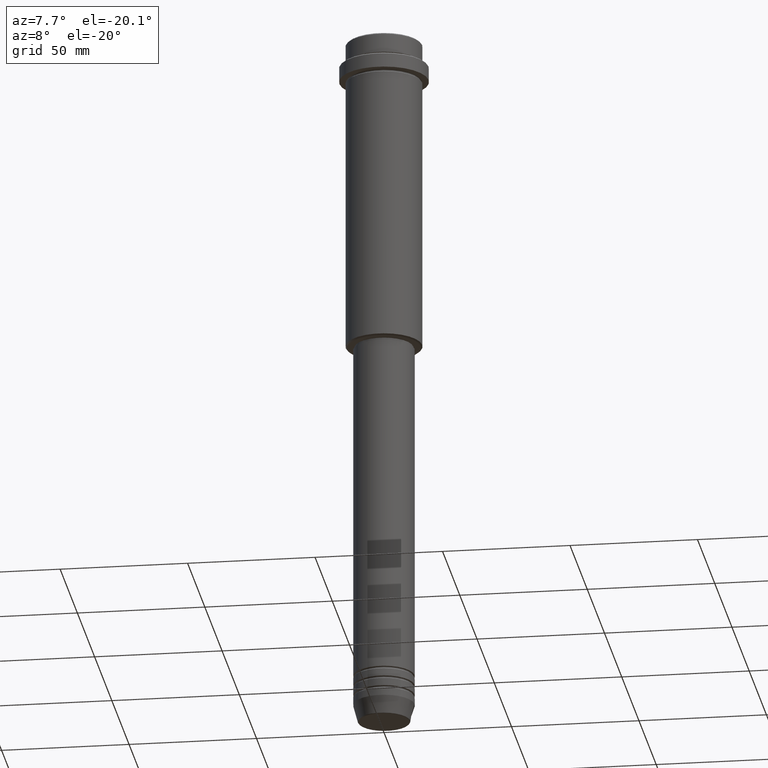
[diagram: clean part render]
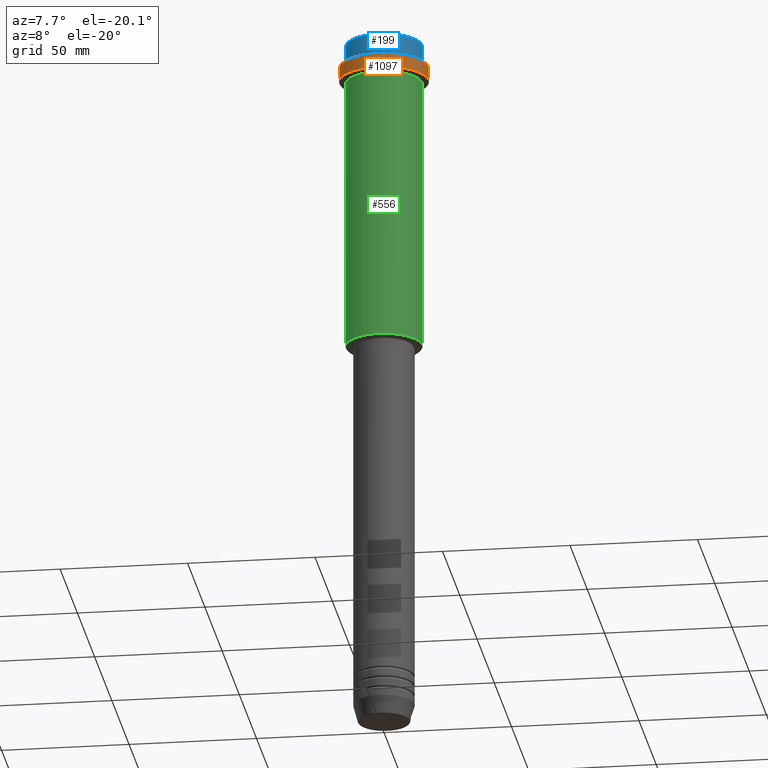
[diagram: same view with three faces highlighted in distinct colors, each labeled with its STEP entity id]
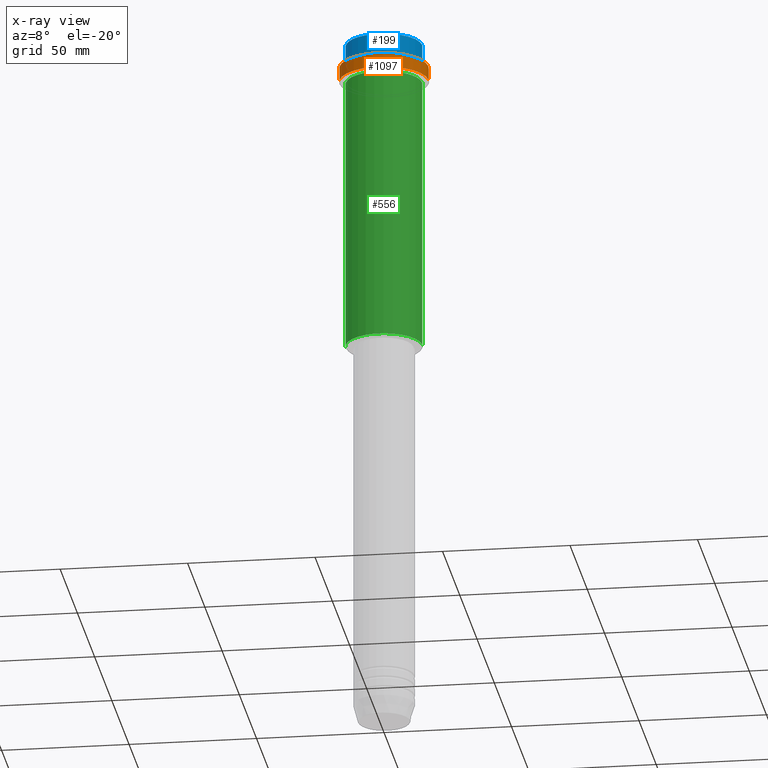
[diagram: x-ray of the same camera — body ghosted, the three highlighted faces saturated]
A machine part, auxiliary view with three faces highlighted in distinct colors.
The next image is the same camera in x-ray (body ghosted, the three faces saturated) — at least one of them is partly hidden behind the body in this view.
Their STEP definitions:

[orange] entity #1097 — the highlighted cylindrical surface (partial cylindrical patch) has radius 17.5 mm, axis along (-0, -0, 1).
#37 = CIRCLE ( 'NONE', #676, 17.50000000000000000 ) ;
#59 = VERTEX_POINT ( 'NONE', #1369 ) ;
#96 = CARTESIAN_POINT ( 'NONE',  ( 17.50000000000000000, 0.000000000000000000, 0.000000000000000000 ) ) ;
#176 = ORIENTED_EDGE ( 'NONE', *, *, #775, .F. ) ;
#210 = EDGE_LOOP ( 'NONE', ( #176, #545, #1207, #1152 ) ) ;
#211 = EDGE_CURVE ( 'NONE', #575, #59, #1217, .T. ) ;
#331 = VECTOR ( 'NONE', #1387, 1000.000000000000000 ) ;
#421 = DIRECTION ( 'NONE',  ( 1.000000000000000000, 0.000000000000000000, 0.000000000000000000 ) ) ;
#530 = DIRECTION ( 'NONE',  ( -0.000000000000000000, -0.000000000000000000, 1.000000000000000000 ) ) ;
#545 = ORIENTED_EDGE ( 'NONE', *, *, #211, .T. ) ;
#557 = CARTESIAN_POINT ( 'NONE',  ( -17.50000000000000000, 2.143131898507868248E-15, -9.499999999999971578 ) ) ;
#575 = VERTEX_POINT ( 'NONE', #1023 ) ;
#578 = DIRECTION ( 'NONE',  ( 1.000000000000000000, 0.000000000000000000, 0.000000000000000000 ) ) ;
#579 = DIRECTION ( 'NONE',  ( 1.000000000000000000, 0.000000000000000000, 0.000000000000000000 ) ) ;
#583 = VECTOR ( 'NONE', #530, 1000.000000000000000 ) ;
#676 = AXIS2_PLACEMENT_3D ( 'NONE', #1215, #1413, #421 ) ;
#684 = FACE_OUTER_BOUND ( 'NONE', #210, .T. ) ;
#735 = CARTESIAN_POINT ( 'NONE',  ( -17.50000000000000000, 2.143131898507868248E-15, 0.000000000000000000 ) ) ;
#745 = EDGE_CURVE ( 'NONE', #59, #1212, #1057, .T. ) ;
#767 = DIRECTION ( 'NONE',  ( -0.000000000000000000, -0.000000000000000000, 1.000000000000000000 ) ) ;
#775 = EDGE_CURVE ( 'NONE', #575, #1029, #1286, .T. ) ;
#801 = AXIS2_PLACEMENT_3D ( 'NONE', #1053, #767, #579 ) ;
#814 = CARTESIAN_POINT ( 'NONE',  ( 0.000000000000000000, 0.000000000000000000, 0.000000000000000000 ) ) ;
#1023 = CARTESIAN_POINT ( 'NONE',  ( -17.50000000000000000, 2.143131898507868248E-15, -15.00000000000000000 ) ) ;
#1029 = VERTEX_POINT ( 'NONE', #557 ) ;
#1041 = EDGE_CURVE ( 'NONE', #1212, #1029, #37, .T. ) ;
#1053 = CARTESIAN_POINT ( 'NONE',  ( 0.000000000000000000, 0.000000000000000000, -15.00000000000000000 ) ) ;
#1057 = LINE ( 'NONE', #96, #331 ) ;
#1097 = ADVANCED_FACE ( 'NONE', ( #684 ), #1116, .T. ) ;
#1116 = CYLINDRICAL_SURFACE ( 'NONE', #1338, 17.50000000000000000 ) ;
#1152 = ORIENTED_EDGE ( 'NONE', *, *, #1041, .T. ) ;
#1207 = ORIENTED_EDGE ( 'NONE', *, *, #745, .T. ) ;
#1212 = VERTEX_POINT ( 'NONE', #1276 ) ;
#1215 = CARTESIAN_POINT ( 'NONE',  ( 0.000000000000000000, 0.000000000000000000, -9.499999999999971578 ) ) ;
#1217 = CIRCLE ( 'NONE', #801, 17.50000000000000000 ) ;
#1232 = DIRECTION ( 'NONE',  ( -0.000000000000000000, -0.000000000000000000, 1.000000000000000000 ) ) ;
#1276 = CARTESIAN_POINT ( 'NONE',  ( 17.50000000000000000, 0.000000000000000000, -9.499999999999971578 ) ) ;
#1286 = LINE ( 'NONE', #735, #583 ) ;
#1338 = AXIS2_PLACEMENT_3D ( 'NONE', #814, #1232, #578 ) ;
#1369 = CARTESIAN_POINT ( 'NONE',  ( 17.50000000000000000, 0.000000000000000000, -15.00000000000000000 ) ) ;
#1387 = DIRECTION ( 'NONE',  ( -0.000000000000000000, -0.000000000000000000, 1.000000000000000000 ) ) ;
#1413 = DIRECTION ( 'NONE',  ( 0.000000000000000000, 0.000000000000000000, -1.000000000000000000 ) ) ;

[blue] entity #199 — the highlighted cylindrical surface (partial cylindrical patch) has radius 15 mm, axis along (-0, -0, 1).
#90 = CARTESIAN_POINT ( 'NONE',  ( -15.00000000000000000, 1.836970198721029589E-15, -7.999999999999998224 ) ) ;
#100 = ORIENTED_EDGE ( 'NONE', *, *, #937, .F. ) ;
#123 = VECTOR ( 'NONE', #1044, 1000.000000000000000 ) ;
#131 = CARTESIAN_POINT ( 'NONE',  ( 0.000000000000000000, 0.000000000000000000, -7.999999999999998224 ) ) ;
#179 = CYLINDRICAL_SURFACE ( 'NONE', #1088, 15.00000000000000000 ) ;
#180 = CARTESIAN_POINT ( 'NONE',  ( 15.00000000000000000, 0.000000000000000000, -7.999999999999998224 ) ) ;
#197 = VERTEX_POINT ( 'NONE', #619 ) ;
#199 = ADVANCED_FACE ( 'NONE', ( #728 ), #179, .T. ) ;
#307 = CIRCLE ( 'NONE', #1016, 15.00000000000000000 ) ;
#399 = CARTESIAN_POINT ( 'NONE',  ( 0.000000000000000000, 0.000000000000000000, -0.5000000000000663913 ) ) ;
#442 = CARTESIAN_POINT ( 'NONE',  ( -15.00000000000000000, 1.836970198721029589E-15, 0.000000000000000000 ) ) ;
#464 = EDGE_CURVE ( 'NONE', #1268, #197, #1373, .T. ) ;
#465 = DIRECTION ( 'NONE',  ( 1.000000000000000000, 0.000000000000000000, 0.000000000000000000 ) ) ;
#467 = VERTEX_POINT ( 'NONE', #945 ) ;
#490 = ORIENTED_EDGE ( 'NONE', *, *, #464, .T. ) ;
#507 = CARTESIAN_POINT ( 'NONE',  ( 15.00000000000000000, 0.000000000000000000, 0.000000000000000000 ) ) ;
#524 = DIRECTION ( 'NONE',  ( 0.000000000000000000, 0.000000000000000000, -1.000000000000000000 ) ) ;
#573 = DIRECTION ( 'NONE',  ( -0.000000000000000000, -0.000000000000000000, 1.000000000000000000 ) ) ;
#585 = AXIS2_PLACEMENT_3D ( 'NONE', #399, #524, #1394 ) ;
#606 = ORIENTED_EDGE ( 'NONE', *, *, #1112, .T. ) ;
#610 = DIRECTION ( 'NONE',  ( -0.000000000000000000, -0.000000000000000000, 1.000000000000000000 ) ) ;
#619 = CARTESIAN_POINT ( 'NONE',  ( 15.00000000000000000, 0.000000000000000000, -0.5000000000000663913 ) ) ;
#728 = FACE_OUTER_BOUND ( 'NONE', #1352, .T. ) ;
#759 = VECTOR ( 'NONE', #879, 1000.000000000000000 ) ;
#836 = ORIENTED_EDGE ( 'NONE', *, *, #851, .T. ) ;
#851 = EDGE_CURVE ( 'NONE', #197, #467, #896, .T. ) ;
#864 = VERTEX_POINT ( 'NONE', #90 ) ;
#879 = DIRECTION ( 'NONE',  ( -0.000000000000000000, -0.000000000000000000, 1.000000000000000000 ) ) ;
#887 = LINE ( 'NONE', #442, #759 ) ;
#896 = CIRCLE ( 'NONE', #585, 15.00000000000000000 ) ;
#937 = EDGE_CURVE ( 'NONE', #864, #467, #887, .T. ) ;
#945 = CARTESIAN_POINT ( 'NONE',  ( -15.00000000000000000, 1.836970198721029589E-15, -0.5000000000000663913 ) ) ;
#1016 = AXIS2_PLACEMENT_3D ( 'NONE', #131, #573, #465 ) ;
#1032 = CARTESIAN_POINT ( 'NONE',  ( 0.000000000000000000, 0.000000000000000000, 0.000000000000000000 ) ) ;
#1044 = DIRECTION ( 'NONE',  ( -0.000000000000000000, -0.000000000000000000, 1.000000000000000000 ) ) ;
#1045 = DIRECTION ( 'NONE',  ( 1.000000000000000000, 0.000000000000000000, 0.000000000000000000 ) ) ;
#1088 = AXIS2_PLACEMENT_3D ( 'NONE', #1032, #610, #1045 ) ;
#1112 = EDGE_CURVE ( 'NONE', #864, #1268, #307, .T. ) ;
#1268 = VERTEX_POINT ( 'NONE', #180 ) ;
#1352 = EDGE_LOOP ( 'NONE', ( #100, #606, #490, #836 ) ) ;
#1373 = LINE ( 'NONE', #507, #123 ) ;
#1394 = DIRECTION ( 'NONE',  ( 1.000000000000000000, 0.000000000000000000, 0.000000000000000000 ) ) ;

[green] entity #556 — the highlighted cylindrical surface (partial cylindrical patch) has radius 15 mm, axis along (-0, -0, 1).
#11 = AXIS2_PLACEMENT_3D ( 'NONE', #317, #1192, #295 ) ;
#12 = VECTOR ( 'NONE', #717, 1000.000000000000000 ) ;
#35 = CIRCLE ( 'NONE', #11, 15.00000000000000178 ) ;
#55 = CARTESIAN_POINT ( 'NONE',  ( -15.00000000000000000, 1.836970198721029589E-15, 0.000000000000000000 ) ) ;
#91 = VERTEX_POINT ( 'NONE', #863 ) ;
#148 = DIRECTION ( 'NONE',  ( -0.000000000000000000, -0.000000000000000000, 1.000000000000000000 ) ) ;
#165 = CIRCLE ( 'NONE', #1405, 15.00000000000000000 ) ;
#285 = CARTESIAN_POINT ( 'NONE',  ( 15.00000000000000000, 0.000000000000000000, 0.000000000000000000 ) ) ;
#289 = ORIENTED_EDGE ( 'NONE', *, *, #739, .T. ) ;
#295 = DIRECTION ( 'NONE',  ( 1.000000000000000000, 0.000000000000000000, 0.000000000000000000 ) ) ;
#317 = CARTESIAN_POINT ( 'NONE',  ( 0.000000000000000000, 0.000000000000000000, -16.00000000000000000 ) ) ;
#347 = DIRECTION ( 'NONE',  ( 1.000000000000000000, 0.000000000000000000, 0.000000000000000000 ) ) ;
#350 = AXIS2_PLACEMENT_3D ( 'NONE', #893, #148, #347 ) ;
#441 = ORIENTED_EDGE ( 'NONE', *, *, #623, .F. ) ;
#452 = CYLINDRICAL_SURFACE ( 'NONE', #350, 15.00000000000000000 ) ;
#533 = VERTEX_POINT ( 'NONE', #642 ) ;
#556 = ADVANCED_FACE ( 'NONE', ( #777 ), #452, .T. ) ;
#596 = LINE ( 'NONE', #55, #12 ) ;
#621 = LINE ( 'NONE', #285, #1269 ) ;
#623 = EDGE_CURVE ( 'NONE', #91, #533, #596, .T. ) ;
#626 = DIRECTION ( 'NONE',  ( -0.000000000000000000, -0.000000000000000000, 1.000000000000000000 ) ) ;
#642 = CARTESIAN_POINT ( 'NONE',  ( -15.00000000000000355, 1.836970198721029983E-15, -16.00000000000000000 ) ) ;
#717 = DIRECTION ( 'NONE',  ( -0.000000000000000000, -0.000000000000000000, 1.000000000000000000 ) ) ;
#739 = EDGE_CURVE ( 'NONE', #899, #928, #621, .T. ) ;
#754 = EDGE_CURVE ( 'NONE', #533, #928, #35, .T. ) ;
#763 = ORIENTED_EDGE ( 'NONE', *, *, #754, .F. ) ;
#772 = CARTESIAN_POINT ( 'NONE',  ( 15.00000000000000000, 0.000000000000000000, -124.4999999999999574 ) ) ;
#777 = FACE_OUTER_BOUND ( 'NONE', #798, .T. ) ;
#798 = EDGE_LOOP ( 'NONE', ( #441, #969, #289, #763 ) ) ;
#819 = EDGE_CURVE ( 'NONE', #91, #899, #165, .T. ) ;
#863 = CARTESIAN_POINT ( 'NONE',  ( -15.00000000000000000, 1.836970198721029589E-15, -124.4999999999999574 ) ) ;
#893 = CARTESIAN_POINT ( 'NONE',  ( 0.000000000000000000, 0.000000000000000000, 0.000000000000000000 ) ) ;
#899 = VERTEX_POINT ( 'NONE', #772 ) ;
#928 = VERTEX_POINT ( 'NONE', #1210 ) ;
#934 = CARTESIAN_POINT ( 'NONE',  ( 0.000000000000000000, 0.000000000000000000, -124.4999999999999574 ) ) ;
#959 = DIRECTION ( 'NONE',  ( -0.000000000000000000, -0.000000000000000000, 1.000000000000000000 ) ) ;
#969 = ORIENTED_EDGE ( 'NONE', *, *, #819, .T. ) ;
#1075 = DIRECTION ( 'NONE',  ( -1.000000000000000000, 0.000000000000000000, 0.000000000000000000 ) ) ;
#1192 = DIRECTION ( 'NONE',  ( -0.000000000000000000, -0.000000000000000000, 1.000000000000000000 ) ) ;
#1210 = CARTESIAN_POINT ( 'NONE',  ( 15.00000000000000178, 0.000000000000000000, -16.00000000000000000 ) ) ;
#1269 = VECTOR ( 'NONE', #626, 1000.000000000000000 ) ;
#1405 = AXIS2_PLACEMENT_3D ( 'NONE', #934, #959, #1075 ) ;